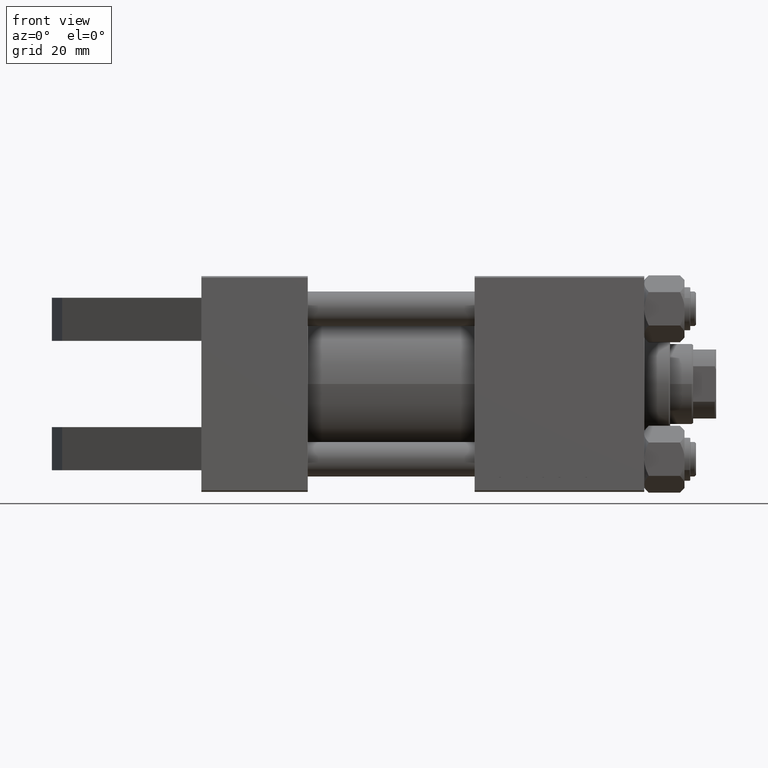
[diagram: clean part render]
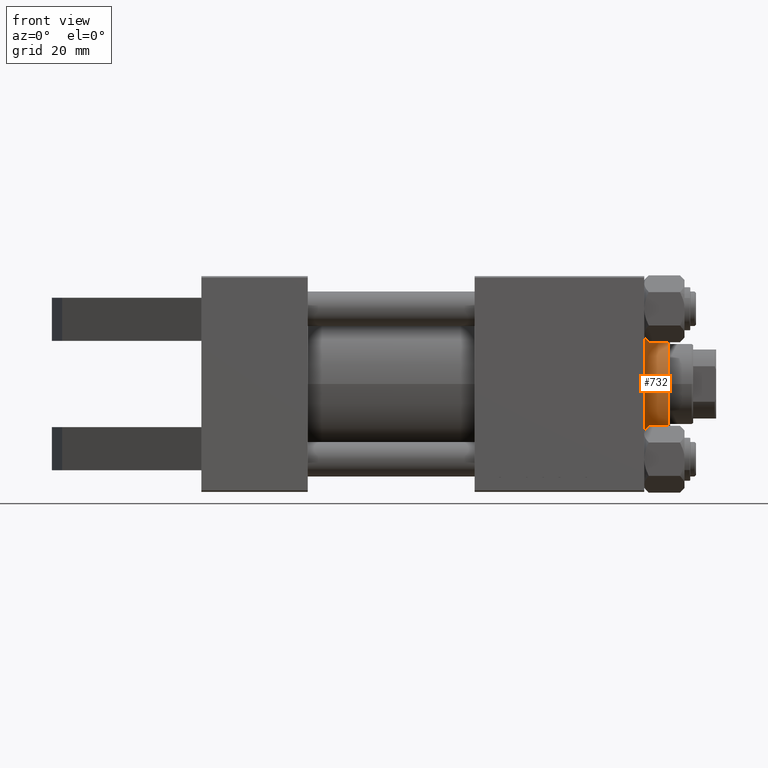
[diagram: same view with one face highlighted and labeled with its STEP entity id]
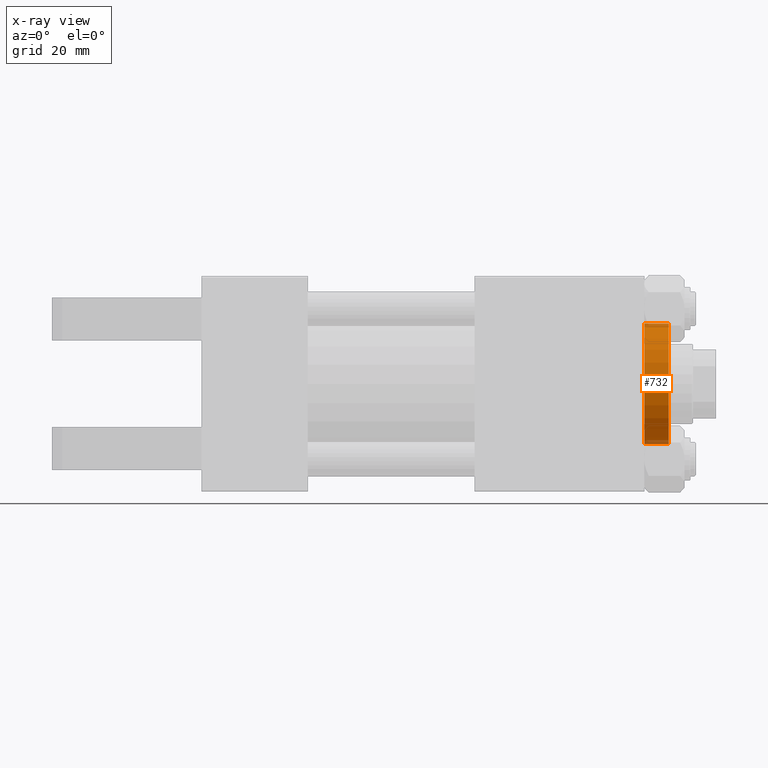
[diagram: x-ray of the same camera — body ghosted, the highlighted face saturated]
A machine part, front view. The second image highlights one B-rep face of the part: STEP entity #732.
The next image is the same camera in x-ray: the body ghosted, the highlighted face saturated — about 7% of this face is hidden behind the body in this view.
In plain terms, the highlighted cylindrical surface (partial cylindrical patch) has radius 21 mm, axis along (-1, 0, 0).
Its self-contained STEP definition (entity closure, byte-faithful):
#541 = DIRECTION ( 'NONE',  ( -1.000000000000000000, 0.000000000000000000, 0.000000000000000000 ) ) ;
#732 = ADVANCED_FACE ( 'NONE', ( #15617 ), #12354, .T. ) ;
#2576 = CARTESIAN_POINT ( 'NONE',  ( 21.00000000000000000, 2.571758278209441661E-15, 28.69999999999999929 ) ) ;
#4712 = EDGE_CURVE ( 'NONE', #31572, #6295, #21220, .T. ) ;
#6295 = VERTEX_POINT ( 'NONE', #18726 ) ;
#7958 = CARTESIAN_POINT ( 'NONE',  ( 0.000000000000000000, 0.000000000000000000, 37.19999999999999574 ) ) ;
#9174 = CARTESIAN_POINT ( 'NONE',  ( -21.00000000000000000, 0.000000000000000000, 28.69999999999999929 ) ) ;
#11096 = LINE ( 'NONE', #26395, #47274 ) ;
#12354 = CYLINDRICAL_SURFACE ( 'NONE', #47576, 21.00000000000000000 ) ;
#15617 = FACE_OUTER_BOUND ( 'NONE', #48811, .T. ) ;
#17005 = EDGE_CURVE ( 'NONE', #31572, #42441, #21370, .T. ) ;
#18608 = CARTESIAN_POINT ( 'NONE',  ( 21.00000000000000000, 2.571758278209441661E-15, 37.19999999999999574 ) ) ;
#18726 = CARTESIAN_POINT ( 'NONE',  ( -21.00000000000000000, 0.000000000000000000, 37.19999999999999574 ) ) ;
#20037 = ORIENTED_EDGE ( 'NONE', *, *, #4712, .T. ) ;
#21220 = CIRCLE ( 'NONE', #49307, 21.00000000000000000 ) ;
#21370 = LINE ( 'NONE', #32404, #21513 ) ;
#21513 = VECTOR ( 'NONE', #47741, 1000.000000000000000 ) ;
#26044 = VERTEX_POINT ( 'NONE', #9174 ) ;
#26395 = CARTESIAN_POINT ( 'NONE',  ( -21.00000000000000000, 0.000000000000000000, 37.69999999999999574 ) ) ;
#28980 = CARTESIAN_POINT ( 'NONE',  ( 0.000000000000000000, 0.000000000000000000, 28.69999999999999929 ) ) ;
#30792 = ORIENTED_EDGE ( 'NONE', *, *, #46547, .T. ) ;
#30926 = DIRECTION ( 'NONE',  ( -0.000000000000000000, -0.000000000000000000, -1.000000000000000000 ) ) ;
#31572 = VERTEX_POINT ( 'NONE', #18608 ) ;
#32021 = AXIS2_PLACEMENT_3D ( 'NONE', #28980, #40060, #44308 ) ;
#32404 = CARTESIAN_POINT ( 'NONE',  ( 21.00000000000000000, 2.571758278209441661E-15, 37.69999999999999574 ) ) ;
#34816 = DIRECTION ( 'NONE',  ( 0.000000000000000000, 0.000000000000000000, -1.000000000000000000 ) ) ;
#36491 = ORIENTED_EDGE ( 'NONE', *, *, #17005, .F. ) ;
#39063 = ORIENTED_EDGE ( 'NONE', *, *, #46492, .T. ) ;
#39096 = DIRECTION ( 'NONE',  ( 1.000000000000000000, 0.000000000000000000, 0.000000000000000000 ) ) ;
#40060 = DIRECTION ( 'NONE',  ( 0.000000000000000000, 0.000000000000000000, 1.000000000000000000 ) ) ;
#42441 = VERTEX_POINT ( 'NONE', #2576 ) ;
#43242 = CARTESIAN_POINT ( 'NONE',  ( 0.000000000000000000, 0.000000000000000000, 37.69999999999999574 ) ) ;
#44308 = DIRECTION ( 'NONE',  ( 1.000000000000000000, 0.000000000000000000, 0.000000000000000000 ) ) ;
#44870 = CIRCLE ( 'NONE', #32021, 21.00000000000000000 ) ;
#45736 = DIRECTION ( 'NONE',  ( -0.000000000000000000, -0.000000000000000000, -1.000000000000000000 ) ) ;
#46492 = EDGE_CURVE ( 'NONE', #26044, #42441, #44870, .T. ) ;
#46547 = EDGE_CURVE ( 'NONE', #6295, #26044, #11096, .T. ) ;
#47274 = VECTOR ( 'NONE', #45736, 1000.000000000000000 ) ;
#47576 = AXIS2_PLACEMENT_3D ( 'NONE', #43242, #30926, #541 ) ;
#47741 = DIRECTION ( 'NONE',  ( -0.000000000000000000, -0.000000000000000000, -1.000000000000000000 ) ) ;
#48811 = EDGE_LOOP ( 'NONE', ( #36491, #20037, #30792, #39063 ) ) ;
#49307 = AXIS2_PLACEMENT_3D ( 'NONE', #7958, #34816, #39096 ) ;